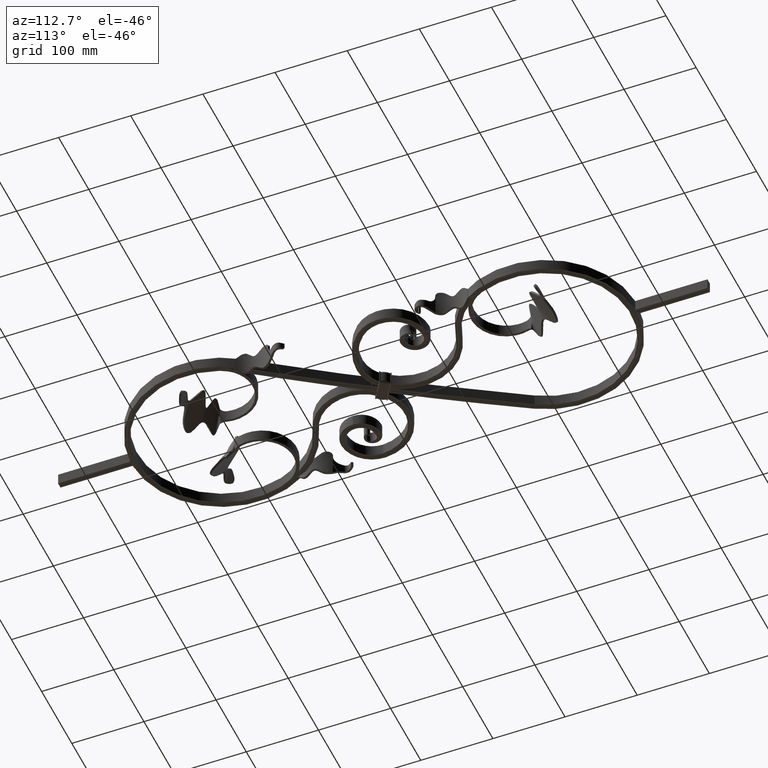
[diagram: clean part render]
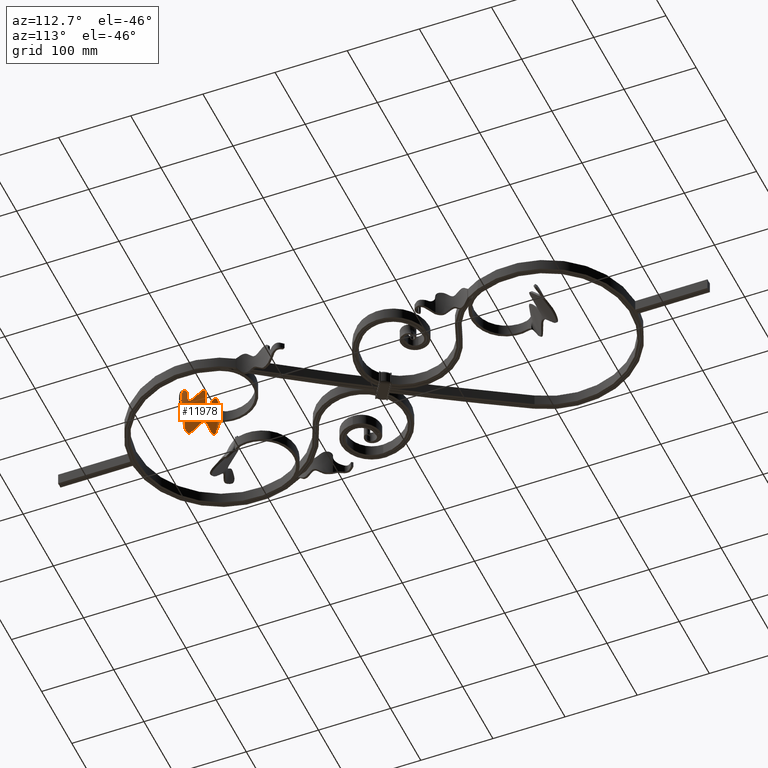
[diagram: same view with one face highlighted and labeled with its STEP entity id]
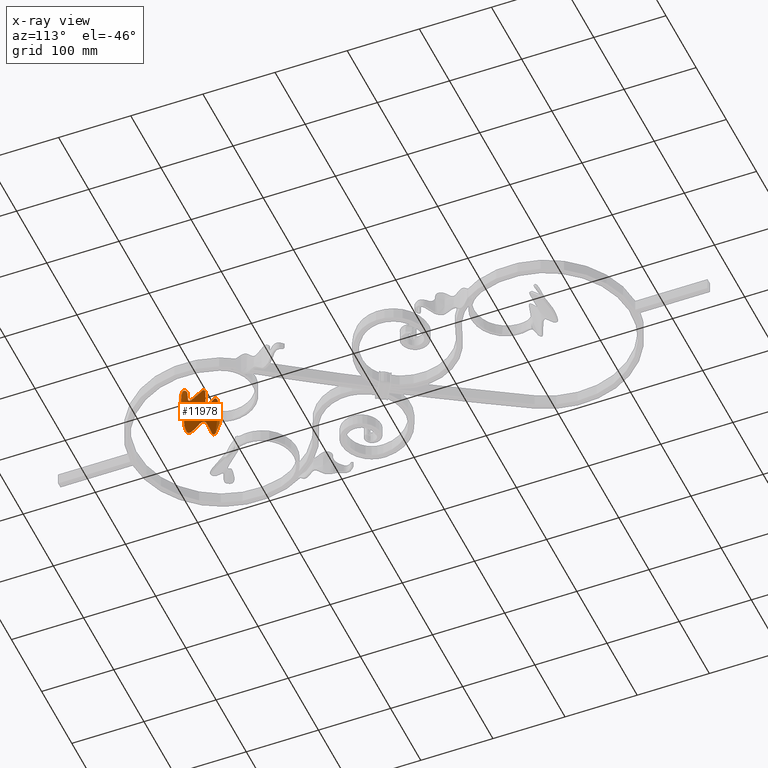
[diagram: x-ray of the same camera — body ghosted, the highlighted face saturated]
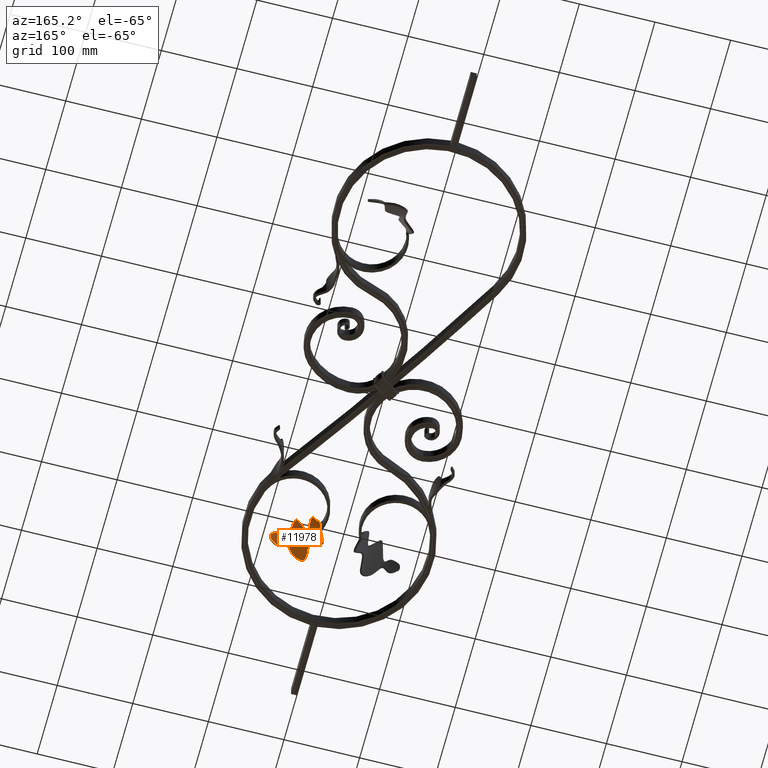
[diagram: same view with one face highlighted and labeled with its STEP entity id]
A machine part, auxiliary view. The second image highlights one B-rep face of the part: STEP entity #11978.
The next image is the same camera in x-ray: the body ghosted, the highlighted face saturated — about 0% of this face is hidden behind the body in this view.
A second angle (auxiliary view) of the same face is appended — the face is thin or edge-on in the first view.
In plain terms, the highlighted face is a freeform B-spline surface patch.
Its self-contained STEP definition (entity closure, byte-faithful):
#8 = CARTESIAN_POINT ( 'NONE',  ( 83.38850937111351413, -246.0427547581425074, -6.398420478492112373 ) ) ;
#43 = CARTESIAN_POINT ( 'NONE',  ( 37.67817902700085142, -234.1715179037224175, -2.015281480078857879 ) ) ;
#62 = ORIENTED_EDGE ( 'NONE', *, *, #19342, .T. ) ;
#257 = EDGE_CURVE ( 'NONE', #15266, #25154, #15576, .T. ) ;
#306 = CARTESIAN_POINT ( 'NONE',  ( 42.32444803506547260, -229.5640952963001666, 3.788303484745695116 ) ) ;
#362 = DIRECTION ( 'NONE',  ( 0.000000000000000000, 0.000000000000000000, 1.000000000000000000 ) ) ;
#468 = CARTESIAN_POINT ( 'NONE',  ( 26.43876436933300411, -218.4641686659490176, -6.626144437832675926 ) ) ;
#488 = CARTESIAN_POINT ( 'NONE',  ( 63.55502549049966632, -246.0842188255921030, -1.499958957944394600 ) ) ;
#751 = CARTESIAN_POINT ( 'NONE',  ( 85.95738396797425196, -244.7135779169519765, -4.314984602727686358 ) ) ;
#889 = CARTESIAN_POINT ( 'NONE',  ( 85.53820269190494230, -244.2399235212456290, -2.793816627776088080 ) ) ;
#1202 = CARTESIAN_POINT ( 'NONE',  ( 83.69614293789136639, -242.3060209310951620, 3.494779730160466613 ) ) ;
#1765 = CARTESIAN_POINT ( 'NONE',  ( 61.21926336684537517, -225.4410305729076640, 25.23963984038446284 ) ) ;
#1829 = CARTESIAN_POINT ( 'NONE',  ( 35.01825764145335995, -236.8092002902708373, -5.337749407352191611 ) ) ;
#1882 = CARTESIAN_POINT ( 'NONE',  ( 56.17501348604287870, -256.8457396820443819, -18.73242314118733276 ) ) ;
#1962 = CARTESIAN_POINT ( 'NONE',  ( 41.74896283427605681, -230.1347689959400213, 3.069473547653506884 ) ) ;
#1995 = CARTESIAN_POINT ( 'NONE',  ( 58.74827885222892121, -240.8249928524223549, 3.699412993827332130 ) ) ;
#2074 = CARTESIAN_POINT ( 'NONE',  ( 43.47541843664429706, -228.4227478970204857, 5.225963358930071578 ) ) ;
#2147 = CARTESIAN_POINT ( 'NONE',  ( 81.42277184227975795, -248.0285283850595590, -10.67172240869989075 ) ) ;
#2238 = CARTESIAN_POINT ( 'NONE',  ( 42.89993323585488838, -228.9934215966603404, 4.507133421837883347 ) ) ;
#2330 = CARTESIAN_POINT ( 'NONE',  ( 63.29057049152626746, -244.3340751027331521, -0.3587992337198157577 ) ) ;
#2414 = CARTESIAN_POINT ( 'NONE',  ( 18.68847127643390849, -229.6284617324907913, -34.70692870863063462 ) ) ;
#2431 = CARTESIAN_POINT ( 'NONE',  ( 24.91395085039305357, -218.9387874723828418, -15.22296204918553819 ) ) ;
#2512 = CARTESIAN_POINT ( 'NONE',  ( 72.85093357801426350, -241.0544428366486329, 12.27022822688818593 ) ) ;
#2629 = CARTESIAN_POINT ( 'NONE',  ( 31.85783989363106983, -215.4762275147499508, 15.94087530055916169 ) ) ;
#2675 = CARTESIAN_POINT ( 'NONE',  ( 83.38850937111351413, -246.0427547581425074, -6.398420478492112373 ) ) ;
#3023 = ORIENTED_EDGE ( 'NONE', *, *, #3579, .F. ) ;
#3029 = CARTESIAN_POINT ( 'NONE',  ( 27.59990345744262186, -215.8107702460232815, 12.75857040279761812 ) ) ;
#3417 = CARTESIAN_POINT ( 'NONE',  ( 85.19616353944739728, -242.9032348393784559, 1.012959608584394600 ) ) ;
#3579 = EDGE_CURVE ( 'NONE', #5089, #16411, #20547, .T. ) ;
#3655 = CARTESIAN_POINT ( 'NONE',  ( 85.59282920832953323, -243.5636256697300439, -1.000553806117047584 ) ) ;
#3688 = CARTESIAN_POINT ( 'NONE',  ( 24.77354745647347656, -219.1360146810195317, -15.62832311744922009 ) ) ;
#3724 = CARTESIAN_POINT ( 'NONE',  ( 33.76919867763357530, -238.0478161555850818, -6.897930234166487651 ) ) ;
#3802 = CARTESIAN_POINT ( 'NONE',  ( 46.14072989904573774, -212.2217960481461319, 45.70358493820528167 ) ) ;
#4046 = CARTESIAN_POINT ( 'NONE',  ( 63.37872215785073138, -244.9174563436861263, -0.7391858084613417423 ) ) ;
#4127 = CARTESIAN_POINT ( 'NONE',  ( 27.59990345744262541, -215.8107702460233099, -8.000000000000001776 ) ) ;
#4211 = CARTESIAN_POINT ( 'NONE',  ( 57.46164616913590351, -248.8353662672334110, -7.516505073680000315 ) ) ;
#4288 = CARTESIAN_POINT ( 'NONE',  ( 86.02557111754485675, -244.9286675949931293, -4.934923260750233354 ) ) ;
#4489 = CARTESIAN_POINT ( 'NONE',  ( 30.78573267285694115, -215.4432891856602907, 14.45601130179686500 ) ) ;
#4559 = CARTESIAN_POINT ( 'NONE',  ( 31.62531968433760809, -215.4778981650671597, 15.53962091868505269 ) ) ;
#4626 = CARTESIAN_POINT ( 'NONE',  ( 85.27584414680605107, -244.6578870061498492, -3.769557353199919358 ) ) ;
#4642 = CARTESIAN_POINT ( 'NONE',  ( 57.56396638381244202, -219.7135348384412907, 30.36297902391847714 ) ) ;
#4992 = CARTESIAN_POINT ( 'NONE',  ( 27.59990345744262186, -215.8107702460232815, -12.37303850767636959 ) ) ;
#5089 = VERTEX_POINT ( 'NONE', #22219 ) ;
#5185 = CARTESIAN_POINT ( 'NONE',  ( 85.48723698036098995, -243.2305453391922754, -0.04053854639923670095 ) ) ;
#5377 = CARTESIAN_POINT ( 'NONE',  ( 84.94356877869476818, -242.7296081229966092, 1.629616255876025877 ) ) ;
#5591 = CARTESIAN_POINT ( 'NONE',  ( 60.82447942300422028, -227.8988935278088661, 21.79820358070119823 ) ) ;
#5682 = CARTESIAN_POINT ( 'NONE',  ( 57.56396638381244202, -219.7135348384412907, 30.36297902391846648 ) ) ;
#5767 = CARTESIAN_POINT ( 'NONE',  ( 65.73019908911363984, -208.1872249330391753, 50.10270566668464198 ) ) ;
#5843 = CARTESIAN_POINT ( 'NONE',  ( 43.80977166140669965, -213.6997877618528037, 38.87596642584384199 ) ) ;
#5932 = CARTESIAN_POINT ( 'NONE',  ( 48.47168813668478293, -210.7438043344394885, 52.53120345056672136 ) ) ;
#6113 = CARTESIAN_POINT ( 'NONE',  ( 27.59990345744262541, -215.8107702460233099, -12.52382816113925301 ) ) ;
#6173 = ORIENTED_EDGE ( 'NONE', *, *, #18851, .T. ) ;
#6285 = CARTESIAN_POINT ( 'NONE',  ( 14.39265495942944106, -232.3523118717234013, -47.28982038728710791 ) ) ;
#6307 = CARTESIAN_POINT ( 'NONE',  ( 26.07241223121503637, -217.3223647383418040, -13.25873640916320895 ) ) ;
#6310 = CARTESIAN_POINT ( 'NONE',  ( 31.85783989363106983, -215.4762275147499508, 15.94087530055916169 ) ) ;
#6468 = CARTESIAN_POINT ( 'NONE',  ( 83.01816125350680409, -242.2150015412299808, 4.120915666213615047 ) ) ;
#6689 = VECTOR ( 'NONE', #362, 1000.000000000000000 ) ;
#6703 = ORIENTED_EDGE ( 'NONE', *, *, #8671, .F. ) ;
#6853 = VERTEX_POINT ( 'NONE', #16418 ) ;
#6979 = B_SPLINE_CURVE_WITH_KNOTS ( 'NONE', 3,
 ( #14368, #4559, #8526, #4489, #16313, #18383, #20430, #20342, #18309, #8604, #7068, #3029 ),
 .UNSPECIFIED., .F., .F.,
 ( 4, 2, 2, 2, 2, 4 ),
 ( 2.043442404540577211E-16, 0.001370081988732007065, 0.002740163977463809866, 0.004110245966195613318, 0.004795286960561521115, 0.005480327954927428913 ),
 .UNSPECIFIED. ) ;
#7068 = CARTESIAN_POINT ( 'NONE',  ( 27.82121404601569381, -215.7505974015497543, 12.80171910254052037 ) ) ;
#7434 = CARTESIAN_POINT ( 'NONE',  ( 27.59990345744262186, -215.8107702460232815, 12.75857040279761812 ) ) ;
#7583 = CARTESIAN_POINT ( 'NONE',  ( 80.63919441494726925, -241.5328798600586993, 7.417659943307529424 ) ) ;
#7660 = CARTESIAN_POINT ( 'NONE',  ( 27.59990345744262541, -215.8107702460233099, 11.27290670417493423 ) ) ;
#7715 = CARTESIAN_POINT ( 'NONE',  ( 20.47323522003614826, -229.6676473216583929, -31.78322864365512501 ) ) ;
#7841 = CARTESIAN_POINT ( 'NONE',  ( 85.23388540374844524, -242.4313726301409133, 2.262863742773670861 ) ) ;
#7922 = CARTESIAN_POINT ( 'NONE',  ( 33.54582940054983453, -214.6672698225249576, 21.65614492308565175 ) ) ;
#7998 = CARTESIAN_POINT ( 'NONE',  ( 81.36555847340893877, -247.5542447697426951, -9.350915467293173577 ) ) ;
#8120 = LINE ( 'NONE', #751, #10778 ) ;
#8251 = CARTESIAN_POINT ( 'NONE',  ( 22.48680797647250529, -220.5754732046588913, -22.35280146906499965 ) ) ;
#8270 = CARTESIAN_POINT ( 'NONE',  ( 25.60342028445038309, -217.9210910992465529, -13.81185810736261743 ) ) ;
#8343 = CARTESIAN_POINT ( 'NONE',  ( 39.82102612446723100, -244.7569833222800071, -12.52592742752797683 ) ) ;
#8358 = CARTESIAN_POINT ( 'NONE',  ( 26.92179893112511735, -216.4043928993316115, -12.63169765583772275 ) ) ;
#8511 = CARTESIAN_POINT ( 'NONE',  ( 85.64314793542526161, -243.9354084185114573, -2.032828484047420226 ) ) ;
#8525 = CARTESIAN_POINT ( 'NONE',  ( 79.10984906502056901, -241.8029282053185227, 7.406682148750094896 ) ) ;
#8526 = CARTESIAN_POINT ( 'NONE',  ( 31.36671201080028837, -215.4671470454412940, 15.16053534915664613 ) ) ;
#8604 = CARTESIAN_POINT ( 'NONE',  ( 28.04153496485000829, -215.6963815732237038, 12.85383254143972742 ) ) ;
#8671 = EDGE_CURVE ( 'NONE', #20640, #19046, #6979, .T. ) ;
#8757 = FACE_OUTER_BOUND ( 'NONE', #13415, .T. ) ;
#9011 = ORIENTED_EDGE ( 'NONE', *, *, #11332, .F. ) ;
#9558 = CARTESIAN_POINT ( 'NONE',  ( 41.47881342376765446, -215.1777794755594755, 32.04834791348240230 ) ) ;
#9738 = CARTESIAN_POINT ( 'NONE',  ( 63.58207350734632257, -246.2632206107113291, -1.616674873942799184 ) ) ;
#9811 = CARTESIAN_POINT ( 'NONE',  ( 29.51963708904778727, -216.8182343717163292, 5.634068935818458357 ) ) ;
#9900 = CARTESIAN_POINT ( 'NONE',  ( 34.39372815954346407, -237.4285082229279737, -6.117839820759339631 ) ) ;
#9993 = CARTESIAN_POINT ( 'NONE',  ( 86.09375826711546154, -245.1437572730343106, -5.554861918772779461 ) ) ;
#10076 = CARTESIAN_POINT ( 'NONE',  ( 41.74896283427605681, -230.1347689959400213, 3.069473547653506884 ) ) ;
#10158 = CARTESIAN_POINT ( 'NONE',  ( 73.52526374822762989, -248.0586403069708865, -5.840581305056340433 ) ) ;
#10261 = CARTESIAN_POINT ( 'NONE',  ( 34.94076187069148176, -215.4540768182815498, 21.26099760747812084 ) ) ;
#10331 = CARTESIAN_POINT ( 'NONE',  ( 27.59990345744262541, -215.8107702460233099, -9.507942720379752188 ) ) ;
#10680 = CARTESIAN_POINT ( 'NONE',  ( 24.77354745647347656, -219.1360146810195317, -15.62832311744922009 ) ) ;
#10778 = VECTOR ( 'NONE', #22306, 1000.000000000000114 ) ;
#10972 = CARTESIAN_POINT ( 'NONE',  ( 84.52180036843563471, -242.5270141727991131, 2.422932514631396472 ) ) ;
#11332 = EDGE_CURVE ( 'NONE', #15876, #6853, #24266, .T. ) ;
#11553 = CARTESIAN_POINT ( 'NONE',  ( 85.15988717558232679, -242.1979524744063212, 2.935635116181089188 ) ) ;
#11625 = CARTESIAN_POINT ( 'NONE',  ( 85.53508205438117784, -243.3814679343097680, -0.4755326936522193959 ) ) ;
#11709 = CARTESIAN_POINT ( 'NONE',  ( 60.42969547916306539, -230.3567564827100966, 18.35676732101793007 ) ) ;
#11791 = CARTESIAN_POINT ( 'NONE',  ( 80.51501594582177290, -240.5034733691675797, 10.28439873585410069 ) ) ;
#11884 = CARTESIAN_POINT ( 'NONE',  ( 48.69249625413983296, -232.2352590803606631, 8.918525798195243937 ) ) ;
#11978 = ADVANCED_FACE ( 'NONE', ( #8757 ), #13511, .F. ) ;
#12051 = CARTESIAN_POINT ( 'NONE',  ( 85.71621777989898305, -243.9528428213482982, -2.122368487560567285 ) ) ;
#12137 = CARTESIAN_POINT ( 'NONE',  ( 25.93293019437979652, -264.3594736581511597, -46.09675832859620215 ) ) ;
#12218 = CARTESIAN_POINT ( 'NONE',  ( 55.44745034044058229, -261.3754337864397712, -25.07478389203985714 ) ) ;
#12233 = CARTESIAN_POINT ( 'NONE',  ( 25.41087635136370437, -218.1993482174748635, -14.13138479487938426 ) ) ;
#12301 = CARTESIAN_POINT ( 'NONE',  ( 16.54056311793167566, -230.9903868021070821, -40.99837454795886771 ) ) ;
#12343 = ORIENTED_EDGE ( 'NONE', *, *, #19653, .T. ) ;
#12636 = CARTESIAN_POINT ( 'NONE',  ( 85.35619291932108865, -244.5524590157758666, -3.531718699164775987 ) ) ;
#12747 = CARTESIAN_POINT ( 'NONE',  ( 26.47803210768488924, -216.8615971371901310, -12.91575889571948821 ) ) ;
#12811 = B_SPLINE_CURVE_WITH_KNOTS ( 'NONE', 3,
 ( #3688, #19459, #7715, #1962, #21410, #1882, #17670, #25345, #13648, #15606 ),
 .UNSPECIFIED., .F., .F.,
 ( 4, 1, 1, 1, 1, 1, 1, 4 ),
 ( 0.03974825612957716414, 0.1555450868424311239, 0.3171069245021586047, 0.5135773434917300095, 0.6410318024686509908, 0.7888780637861358969, 0.8531032969698881807, 0.9736193468043490284 ),
 .UNSPECIFIED. ) ;
#12818 = CARTESIAN_POINT ( 'NONE',  ( 85.48729346548876151, -244.3437289914079145, -3.044480006083763790 ) ) ;
#13122 = CARTESIAN_POINT ( 'NONE',  ( 84.84464974260089321, -242.6757782852796197, 1.832847872222356012 ) ) ;
#13415 = EDGE_LOOP ( 'NONE', ( #23356, #3023, #6173, #6703, #12343, #9011, #62, #16615 ) ) ;
#13511 = B_SPLINE_SURFACE_WITH_KNOTS ( 'NONE', 3, 3, ( 
 ( #18901, #23391, #5932, #3724, #5767, #1765, #15560, #17700, #11791, #17443 ),
 ( #7660, #19490, #3802, #9900, #17522, #5591, #25293, #21368, #13765, #15705 ),
 ( #13597, #7922, #5843, #1829, #21436, #11709, #9738, #13683, #7583, #11553 ),
 ( #23551, #25369, #9558, #19403, #5682, #15629, #19565, #25206, #19320, #7841 ),
 ( #21517, #9811, #23478, #43, #11884, #1995, #15394, #21287, #23226, #13513 ),
 ( #20074, #468, #23890, #23814, #8343, #4211, #4046, #10158, #19822, #12051 ),
 ( #4127, #19727, #2414, #10076, #18116, #18043, #2330, #19980, #23730, #14110 ),
 ( #10331, #8251, #12301, #306, #19900, #23986, #21693, #16055, #7998, #4288 ),
 ( #14025, #22019, #6285, #2238, #12137, #12218, #17956, #17867, #2147, #9993 ),
 ( #6113, #13841, #17779, #2074, #16143, #23631, #14187, #15955, #21947, #15798 ) ),
 .UNSPECIFIED., .F., .F., .F.,
 ( 4, 3, 3, 4 ),
 ( 4, 1, 1, 1, 1, 1, 1, 4 ),
 ( -0.3068350035163999734, 0.000000000000000000, 1.000000000000000000, 1.282739260071203091 ),
 ( 0.000000000000000000, 0.1555450868424311239, 0.3171069245021586047, 0.5135773434917300095, 0.6410318024686509908, 0.7888780637861357858, 0.8531032969698880697, 1.000000000000000000 ),
 .UNSPECIFIED. ) ;
#13513 = CARTESIAN_POINT ( 'NONE',  ( 85.47505159182371415, -243.1921077257445916, 0.07024762760655192673 ) ) ;
#13597 = CARTESIAN_POINT ( 'NONE',  ( 27.59990345744262541, -215.8107702460233099, 9.636453352087468005 ) ) ;
#13648 = CARTESIAN_POINT ( 'NONE',  ( 79.39312329311675853, -248.1032463436570481, -9.614278148290624770 ) ) ;
#13683 = CARTESIAN_POINT ( 'NONE',  ( 73.50165537291179874, -239.5718112704241207, 16.16591692116250911 ) ) ;
#13765 = CARTESIAN_POINT ( 'NONE',  ( 80.57710518038452108, -241.0181766146131395, 8.851029339580815503 ) ) ;
#13813 = B_SPLINE_CURVE_WITH_KNOTS ( 'NONE', 3,
 ( #6310, #10261, #20251, #20177, #4642, #14295, #488, #2512, #8525, #6468 ),
 .UNSPECIFIED., .F., .F.,
 ( 4, 1, 1, 1, 1, 1, 1, 4 ),
 ( 0.04660906249733412499, 0.1555450868424311239, 0.3171069245021586047, 0.5135773434917301206, 0.6410318024686509908, 0.7888780637861357858, 0.8531032969698881807, 0.9764099418465120861 ),
 .UNSPECIFIED. ) ;
#13841 = CARTESIAN_POINT ( 'NONE',  ( 20.74464063018107396, -221.5062136936132617, -29.28568878422738209 ) ) ;
#14025 = CARTESIAN_POINT ( 'NONE',  ( 27.59990345744262541, -215.8107702460233099, -11.01588544075950260 ) ) ;
#14110 = CARTESIAN_POINT ( 'NONE',  ( 85.95738396797425196, -244.7135779169519481, -4.314984602727686358 ) ) ;
#14187 = CARTESIAN_POINT ( 'NONE',  ( 63.21579868079438569, -243.8392407615137643, -0.03614857766950045626 ) ) ;
#14204 = CARTESIAN_POINT ( 'NONE',  ( 25.06626518667838255, -218.7082238740652258, -14.83663247596694390 ) ) ;
#14295 = CARTESIAN_POINT ( 'NONE',  ( 60.03491153532191760, -232.8146194376112987, 14.91533106133465836 ) ) ;
#14368 = CARTESIAN_POINT ( 'NONE',  ( 31.85783989363106983, -215.4762275147499508, 15.94087530055916169 ) ) ;
#14688 = CARTESIAN_POINT ( 'NONE',  ( 83.78779408610932933, -245.8368365366208934, -6.077039068013626810 ) ) ;
#15266 = VERTEX_POINT ( 'NONE', #8 ) ;
#15394 = CARTESIAN_POINT ( 'NONE',  ( 63.46687382417519530, -245.5008375846391004, -1.119572383202866783 ) ) ;
#15560 = CARTESIAN_POINT ( 'NONE',  ( 63.63616954103962087, -246.6212241809497243, -1.850106705939613683 ) ) ;
#15576 = B_SPLINE_CURVE_WITH_KNOTS ( 'NONE', 3,
 ( #2675, #14688, #16392, #18451, #24152, #4626, #12636, #12818, #889, #8511, #16553, #16477 ),
 .UNSPECIFIED., .F., .F.,
 ( 4, 2, 2, 2, 2, 4 ),
 ( 0.000000000000000000, 0.001633593590853064199, 0.003267187181706128398, 0.004083983977132676219, 0.004900780772559224473, 0.006534374363412314909 ),
 .UNSPECIFIED. ) ;
#15606 = CARTESIAN_POINT ( 'NONE',  ( 83.38850937111351413, -246.0427547581425074, -6.398420478492112373 ) ) ;
#15629 = CARTESIAN_POINT ( 'NONE',  ( 60.03491153532191760, -232.8146194376112987, 14.91533106133466546 ) ) ;
#15705 = CARTESIAN_POINT ( 'NONE',  ( 85.08588894741620834, -241.9645323186717008, 3.608406489588507515 ) ) ;
#15798 = CARTESIAN_POINT ( 'NONE',  ( 86.16194541668606632, -245.3588469510754919, -6.174800576795326457 ) ) ;
#15876 = VERTEX_POINT ( 'NONE', #11625 ) ;
#15955 = CARTESIAN_POINT ( 'NONE',  ( 73.54417858997143753, -254.8582199470700971, -23.47201191883572591 ) ) ;
#16055 = CARTESIAN_POINT ( 'NONE',  ( 73.53839142742353374, -252.7778286243390085, -18.07752031821863525 ) ) ;
#16078 = CARTESIAN_POINT ( 'NONE',  ( 26.33773117479595527, -217.0150585116694231, -13.02162833095614047 ) ) ;
#16143 = CARTESIAN_POINT ( 'NONE',  ( 23.42461729417238203, -267.8998567051270356, -52.15994716626870797 ) ) ;
#16313 = CARTESIAN_POINT ( 'NONE',  ( 30.46338056613003076, -215.4298412627618404, 14.13053687538800673 ) ) ;
#16392 = CARTESIAN_POINT ( 'NONE',  ( 84.13683324615608683, -245.6262661283972477, -5.714927686472631052 ) ) ;
#16411 = VERTEX_POINT ( 'NONE', #17413 ) ;
#16418 = CARTESIAN_POINT ( 'NONE',  ( 83.01816125350680409, -242.2150015412299808, 4.120915666213615047 ) ) ;
#16477 = CARTESIAN_POINT ( 'NONE',  ( 85.59282920832953323, -243.5636256697300439, -1.000553806117047584 ) ) ;
#16553 = CARTESIAN_POINT ( 'NONE',  ( 85.64992618053193496, -243.7437324705786068, -1.519663646419985525 ) ) ;
#16615 = ORIENTED_EDGE ( 'NONE', *, *, #257, .F. ) ;
#16871 = CARTESIAN_POINT ( 'NONE',  ( 83.01816125350680409, -242.2150015412299808, 4.120915666213615047 ) ) ;
#17129 = CARTESIAN_POINT ( 'NONE',  ( 85.11911808717533745, -242.8432843771581133, 1.219932986455677160 ) ) ;
#17370 = EDGE_CURVE ( 'NONE', #16411, #15266, #12811, .T. ) ;
#17413 = CARTESIAN_POINT ( 'NONE',  ( 24.77354745647347656, -219.1360146810195317, -15.62832311744922009 ) ) ;
#17443 = CARTESIAN_POINT ( 'NONE',  ( 85.01189071925008989, -241.7311121629371087, 4.281177862995924954 ) ) ;
#17522 = CARTESIAN_POINT ( 'NONE',  ( 63.00812152067990013, -212.0293282348398805, 43.52279678576257993 ) ) ;
#17670 = CARTESIAN_POINT ( 'NONE',  ( 63.29057049152626746, -244.3340751027331521, -0.3587992337198157577 ) ) ;
#17700 = CARTESIAN_POINT ( 'NONE',  ( 73.49537501396804373, -237.3141238213413544, 22.02014052218521911 ) ) ;
#17779 = CARTESIAN_POINT ( 'NONE',  ( 12.24474680092720646, -233.7142369413396921, -53.58126622661534810 ) ) ;
#17867 = CARTESIAN_POINT ( 'NONE',  ( 73.54128500869748564, -253.8180242857045528, -20.77476611852718236 ) ) ;
#17956 = CARTESIAN_POINT ( 'NONE',  ( 63.24072261770501058, -244.0041855419202079, -0.1436987963529389178 ) ) ;
#18043 = CARTESIAN_POINT ( 'NONE',  ( 56.17501348604287870, -256.8457396820443819, -18.73242314118733276 ) ) ;
#18116 = CARTESIAN_POINT ( 'NONE',  ( 30.94955599479462549, -257.2787075641993511, -33.97038065325119049 ) ) ;
#18309 = CARTESIAN_POINT ( 'NONE',  ( 28.47923201755728684, -215.6023946654748045, 12.98186088577491226 ) ) ;
#18383 = CARTESIAN_POINT ( 'NONE',  ( 29.72605080238614050, -215.4419507197504231, 13.55680556181870244 ) ) ;
#18451 = CARTESIAN_POINT ( 'NONE',  ( 84.73817992328707760, -245.1974518332451964, -4.911575979928789693 ) ) ;
#18729 = CARTESIAN_POINT ( 'NONE',  ( 27.24840750835046421, -216.1041393549269003, -12.48700411804914445 ) ) ;
#18851 = EDGE_CURVE ( 'NONE', #5089, #19046, #22294, .T. ) ;
#18901 = CARTESIAN_POINT ( 'NONE',  ( 27.59990345744262541, -215.8107702460233099, 12.90936005626240046 ) ) ;
#19046 = VERTEX_POINT ( 'NONE', #7434 ) ;
#19093 = CARTESIAN_POINT ( 'NONE',  ( 84.27046673907402408, -242.4434402669550366, 2.794647416944013418 ) ) ;
#19320 = CARTESIAN_POINT ( 'NONE',  ( 80.70128364951001743, -242.0475831055042590, 5.984290547034244234 ) ) ;
#19342 = EDGE_CURVE ( 'NONE', #15876, #25154, #8120, .T. ) ;
#19403 = CARTESIAN_POINT ( 'NONE',  ( 35.64278712336325583, -236.1898923576137008, -4.557658993945044479 ) ) ;
#19459 = CARTESIAN_POINT ( 'NONE',  ( 22.48437904210553384, -222.3516513110241419, -22.23742086059265333 ) ) ;
#19490 = CARTESIAN_POINT ( 'NONE',  ( 34.49114899233710219, -214.1622395675663029, 25.41800753670171176 ) ) ;
#19565 = CARTESIAN_POINT ( 'NONE',  ( 63.55502549049966632, -246.0842188255921030, -1.499958957944391935 ) ) ;
#19653 = EDGE_CURVE ( 'NONE', #20640, #6853, #13813, .T. ) ;
#19727 = CARTESIAN_POINT ( 'NONE',  ( 23.35789164961821740, -220.1101029601817061, -18.88635781148380843 ) ) ;
#19822 = CARTESIAN_POINT ( 'NONE',  ( 81.10599128619540465, -245.4025018047853450, -3.358642168246223747 ) ) ;
#19900 = CARTESIAN_POINT ( 'NONE',  ( 28.44124309458721100, -260.8190906111752270, -40.03356949092369632 ) ) ;
#19980 = CARTESIAN_POINT ( 'NONE',  ( 73.53549784614958185, -251.7376329629734641, -15.38027451791008993 ) ) ;
#19999 = CARTESIAN_POINT ( 'NONE',  ( 25.94736995821725145, -217.4763874237145558, -13.39042929438735463 ) ) ;
#20074 = CARTESIAN_POINT ( 'NONE',  ( 27.59990345744262541, -215.8107702460233099, -2.666666666666666963 ) ) ;
#20177 = CARTESIAN_POINT ( 'NONE',  ( 35.64278712336325583, -236.1898923576137008, -4.557658993945042702 ) ) ;
#20251 = CARTESIAN_POINT ( 'NONE',  ( 40.94917223531048478, -217.0847072147432755, 28.72621603724708095 ) ) ;
#20342 = CARTESIAN_POINT ( 'NONE',  ( 28.69727278389803971, -215.5626562011701424, 13.05827460004867291 ) ) ;
#20430 = CARTESIAN_POINT ( 'NONE',  ( 29.32954841326673545, -215.4694489492502214, 13.32563517656777918 ) ) ;
#20547 = B_SPLINE_CURVE_WITH_KNOTS ( 'NONE', 3,
 ( #4992, #18729, #8358, #12747, #16078, #6307, #19999, #8270, #12233, #14204, #2431, #10680 ),
 .UNSPECIFIED., .F., .F.,
 ( 4, 2, 2, 2, 2, 4 ),
 ( 7.757919228897728493E-18, 0.001394597828033829028, 0.002091896742050763924, 0.002789195656067698821, 0.004183793484101564278, 0.005578391312135430602 ),
 .UNSPECIFIED. ) ;
#20640 = VERTEX_POINT ( 'NONE', #2629 ) ;
#21287 = CARTESIAN_POINT ( 'NONE',  ( 73.51502965030566372, -244.3796476509682236, 3.699111907797407284 ) ) ;
#21368 = CARTESIAN_POINT ( 'NONE',  ( 73.49851519343991413, -238.4429675458827376, 19.09302872167386411 ) ) ;
#21410 = CARTESIAN_POINT ( 'NONE',  ( 30.94955599479462549, -257.2787075641993511, -33.97038065325119049 ) ) ;
#21436 = CARTESIAN_POINT ( 'NONE',  ( 60.28604395224617463, -215.8714315366405856, 36.94288790484052498 ) ) ;
#21517 = CARTESIAN_POINT ( 'NONE',  ( 27.59990345744262541, -215.8107702460233099, 2.666666666666666963 ) ) ;
#21693 = CARTESIAN_POINT ( 'NONE',  ( 63.26564655461564257, -244.1691303223266800, -0.2512490150363773656 ) ) ;
#21947 = CARTESIAN_POINT ( 'NONE',  ( 81.47998521115056292, -248.5028120003764514, -11.99252935010660792 ) ) ;
#22019 = CARTESIAN_POINT ( 'NONE',  ( 21.61572430332678962, -221.0408434491360765, -25.81924512664619087 ) ) ;
#22154 = CARTESIAN_POINT ( 'NONE',  ( 27.59990345744262186, -215.8107702460232815, 8.000000000000000000 ) ) ;
#22219 = CARTESIAN_POINT ( 'NONE',  ( 27.59990345744262186, -215.8107702460232815, -12.37303850767636959 ) ) ;
#22294 = LINE ( 'NONE', #22154, #6689 ) ;
#22306 = DIRECTION ( 'NONE',  ( 0.1033569377465439199, -0.3260293266872936191, -0.9396926207859073177 ) ) ;
#22658 = CARTESIAN_POINT ( 'NONE',  ( 85.39580985788290945, -243.0922978358907471, 0.3858065534279193631 ) ) ;
#22845 = CARTESIAN_POINT ( 'NONE',  ( 83.37131219139399718, -242.2522360501528453, 3.824017297039181695 ) ) ;
#23226 = CARTESIAN_POINT ( 'NONE',  ( 80.90363746785271815, -243.7250424551447736, 1.312824189394010466 ) ) ;
#23356 = ORIENTED_EDGE ( 'NONE', *, *, #17370, .F. ) ;
#23391 = CARTESIAN_POINT ( 'NONE',  ( 35.43646858412436274, -213.6572093126076481, 29.17987015031776821 ) ) ;
#23478 = CARTESIAN_POINT ( 'NONE',  ( 33.88203270798972966, -219.9946735612033422, 9.796589039444723923 ) ) ;
#23551 = CARTESIAN_POINT ( 'NONE',  ( 27.59990345744262541, -215.8107702460233099, 8.000000000000001776 ) ) ;
#23631 = CARTESIAN_POINT ( 'NONE',  ( 55.08366876763943054, -263.6402808386375227, -28.24596426746612110 ) ) ;
#23730 = CARTESIAN_POINT ( 'NONE',  ( 81.30834510453813380, -247.0799611544258312, -8.030108525886456405 ) ) ;
#23814 = CARTESIAN_POINT ( 'NONE',  ( 39.71357093063846122, -232.1531434498312478, 0.5270960337873280555 ) ) ;
#23890 = CARTESIAN_POINT ( 'NONE',  ( 26.28525199221182973, -224.8115676468469815, -12.45516983459295624 ) ) ;
#23986 = CARTESIAN_POINT ( 'NONE',  ( 55.81123191324172694, -259.1105867342420765, -21.90360351661359672 ) ) ;
#24152 = CARTESIAN_POINT ( 'NONE',  ( 84.99077279087990178, -244.9774522017132767, -4.465822687988428186 ) ) ;
#24266 = B_SPLINE_CURVE_WITH_KNOTS ( 'NONE', 3,
 ( #24890, #5185, #22658, #3417, #17129, #5377, #13122, #10972, #19093, #1202, #22845, #16871 ),
 .UNSPECIFIED., .F., .F.,
 ( 4, 2, 2, 2, 2, 4 ),
 ( 0.000000000000000000, 0.001369030913764286055, 0.002053546370646417481, 0.002738061827528548691, 0.004107092741292792462, 0.005476123655057035799 ),
 .UNSPECIFIED. ) ;
#24890 = CARTESIAN_POINT ( 'NONE',  ( 85.53508205438117784, -243.3814679343097680, -0.4755326936522193959 ) ) ;
#25154 = VERTEX_POINT ( 'NONE', #3655 ) ;
#25206 = CARTESIAN_POINT ( 'NONE',  ( 73.50479555238368334, -240.7006549949655039, 13.23880512065115411 ) ) ;
#25293 = CARTESIAN_POINT ( 'NONE',  ( 63.60912152419297172, -246.4422223958305267, -1.733390789941206434 ) ) ;
#25345 = CARTESIAN_POINT ( 'NONE',  ( 72.78259584141599703, -251.1935438384546160, -14.27634293654859299 ) ) ;
#25369 = CARTESIAN_POINT ( 'NONE',  ( 32.60050980876257398, -215.1723000774836123, 17.89428230946959175 ) ) ;